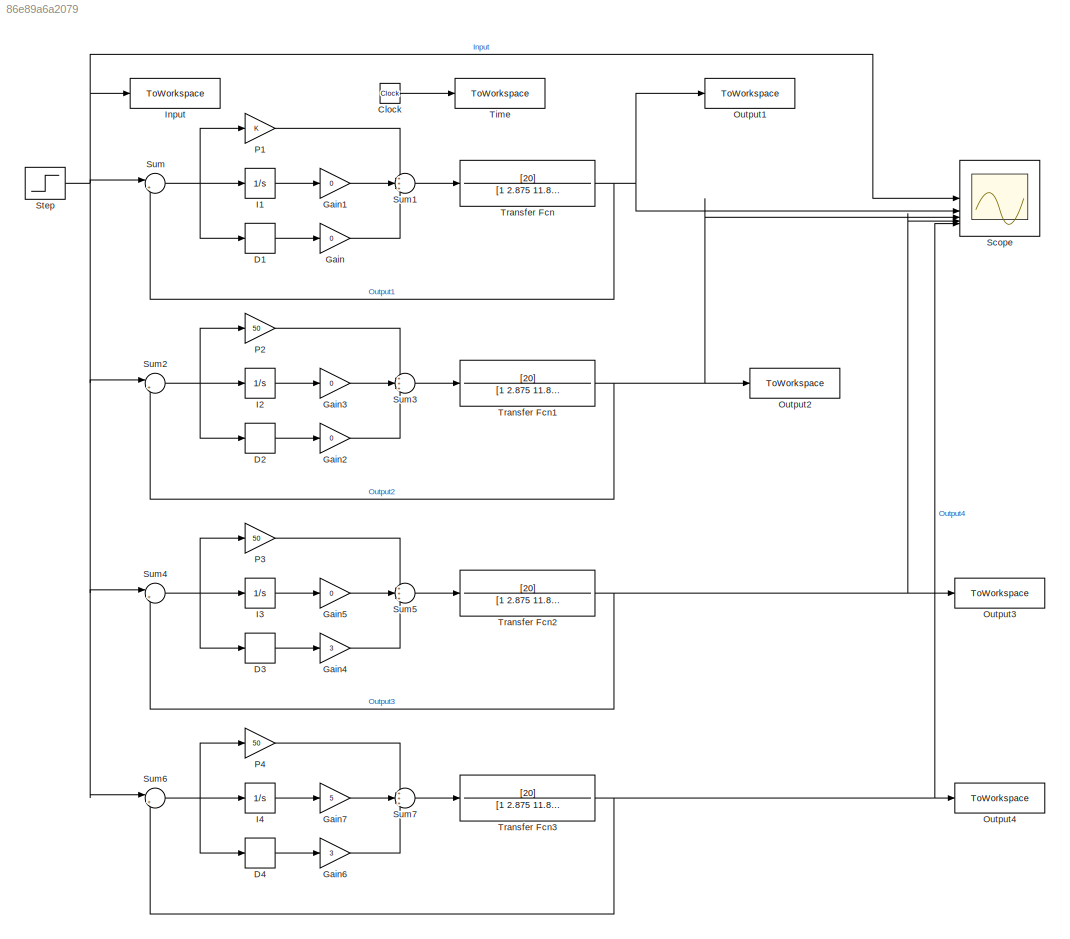
MODEL slx_86e89a6a2079
KIND model
CONFIG AbsTol = auto
CONFIG EnableMultiTasking = off
CONFIG FixedStep = auto
CONFIG MaxStep = auto
CONFIG MinStep = auto
CONFIG RelTol = 1e-3
CONFIG SampleTimeConstraint = Unconstrained
CONFIG SolverName = VariableStepAuto
CONFIG StartTime = 0.0
CONFIG StopTime = 10.0
BLOCK [Clock] Clock
BLOCK [Derivative] D1
BLOCK [Derivative] D2
BLOCK [Derivative] D3
BLOCK [Derivative] D4
BLOCK [Gain] Gain
  Gain = 0
BLOCK [Gain] Gain1
  Gain = 0
BLOCK [Gain] Gain2
  Gain = 0
BLOCK [Gain] Gain3
  Gain = 0
BLOCK [Gain] Gain4
  Gain = 3
BLOCK [Gain] Gain5
  Gain = 0
BLOCK [Gain] Gain6
  Gain = 3
BLOCK [Gain] Gain7
  Gain = 5
BLOCK [Integrator] I1
BLOCK [Integrator] I2
BLOCK [Integrator] I3
BLOCK [Integrator] I4
BLOCK [ToWorkspace] Input
  FixptAsFi = on
  MaxDataPoints = inf
  SampleTime = -1
  SaveFormat = Timeseries
  VariableName = input
BLOCK [ToWorkspace] Output1
  FixptAsFi = on
  MaxDataPoints = inf
  SampleTime = -1
  SaveFormat = Timeseries
  VariableName = output1
BLOCK [ToWorkspace] Output2
  FixptAsFi = on
  MaxDataPoints = inf
  SampleTime = -1
  SaveFormat = Timeseries
  VariableName = output2
BLOCK [ToWorkspace] Output3
  FixptAsFi = on
  MaxDataPoints = inf
  SampleTime = -1
  SaveFormat = Timeseries
  VariableName = output3
BLOCK [ToWorkspace] Output4
  FixptAsFi = on
  MaxDataPoints = inf
  SampleTime = -1
  SaveFormat = Timeseries
  VariableName = output4
BLOCK [Gain] P1
BLOCK [Gain] P2
  Gain = 50
BLOCK [Gain] P3
  Gain = 50
BLOCK [Gain] P4
  Gain = 50
BLOCK [Scope] Scope
  Floating = off
  NumInputPorts = 5
  ScopeSpecificationString = Simulink.scopes.TimeScopeBlockCfg('CurrentConfiguration', extmgr.ConfigurationSet(extmgr.Configuration('Core','General UI',true,'FigureColor',[1 1 1]),extmgr.Configuration('Core','Source UI',true),extmgr.Configuration('Sources','WiredSimulink',true),extmgr.Configuration('Visuals','Time Domain',true,'SerializedDisplays',{struct('MinYLimReal','-0.125','MaxYLimReal','1.125','YLabelReal','','MinYLimMa...<+1838ch>
BLOCK [Step] Step
  SampleTime = 0
  Time = 0.0001
BLOCK [Sum] Sum
  Inputs = |+-
BLOCK [Sum] Sum1
  Inputs = +++
BLOCK [Sum] Sum2
  Inputs = |+-
BLOCK [Sum] Sum3
  Inputs = +++
BLOCK [Sum] Sum4
  Inputs = |+-
BLOCK [Sum] Sum5
  Inputs = +++
BLOCK [Sum] Sum6
  Inputs = |+-
BLOCK [Sum] Sum7
  Inputs = +++
BLOCK [ToWorkspace] Time
  FixptAsFi = on
  MaxDataPoints = inf
  SampleTime = -1
  SaveFormat = Timeseries
  VariableName = time
BLOCK [TransferFcn] Transfer Fcn
  Denominator = [1 2.875 11.87]
  Numerator = [20]
BLOCK [TransferFcn] Transfer Fcn1
  Denominator = [1 2.875 11.87]
  Numerator = [20]
BLOCK [TransferFcn] Transfer Fcn2
  Denominator = [1 2.875 11.87]
  Numerator = [20]
BLOCK [TransferFcn] Transfer Fcn3
  Denominator = [1 2.875 11.87]
  Numerator = [20]
LINE Clock:1 -> Time:1
LINE D1:1 -> Gain:1
LINE D2:1 -> Gain2:1
LINE D3:1 -> Gain4:1
LINE D4:1 -> Gain6:1
LINE Gain1:1 -> Sum1:2
LINE Gain2:1 -> Sum3:3
LINE Gain3:1 -> Sum3:2
LINE Gain4:1 -> Sum5:3
LINE Gain5:1 -> Sum5:2
LINE Gain6:1 -> Sum7:3
LINE Gain7:1 -> Sum7:2
LINE Gain:1 -> Sum1:3
LINE I1:1 -> Gain1:1
LINE I2:1 -> Gain3:1
LINE I3:1 -> Gain5:1
LINE I4:1 -> Gain7:1
LINE P1:1 -> Sum1:1
LINE P2:1 -> Sum3:1
LINE P3:1 -> Sum5:1
LINE P4:1 -> Sum7:1
NET Step:1 -> Input:1, Scope:1, Sum2:1, Sum4:1, Sum6:1, Sum:1
LINE Sum1:1 -> Transfer Fcn:1
NET Sum2:1 -> D2:1, I2:1, P2:1
LINE Sum3:1 -> Transfer Fcn1:1
NET Sum4:1 -> D3:1, I3:1, P3:1
LINE Sum5:1 -> Transfer Fcn2:1
NET Sum6:1 -> D4:1, I4:1, P4:1
LINE Sum7:1 -> Transfer Fcn3:1
NET Sum:1 -> D1:1, I1:1, P1:1
NET Transfer Fcn1:1 -> Output2:1, Scope:3, Sum2:2
NET Transfer Fcn2:1 -> Output3:1, Scope:4, Sum4:2
NET Transfer Fcn3:1 -> Output4:1, Scope:5, Sum6:2
NET Transfer Fcn:1 -> Output1:1, Scope:2, Sum:2
note: NET lines group one-source signal fan-out (src -> all destinations, sorted); 1:1 wires keep LINE
